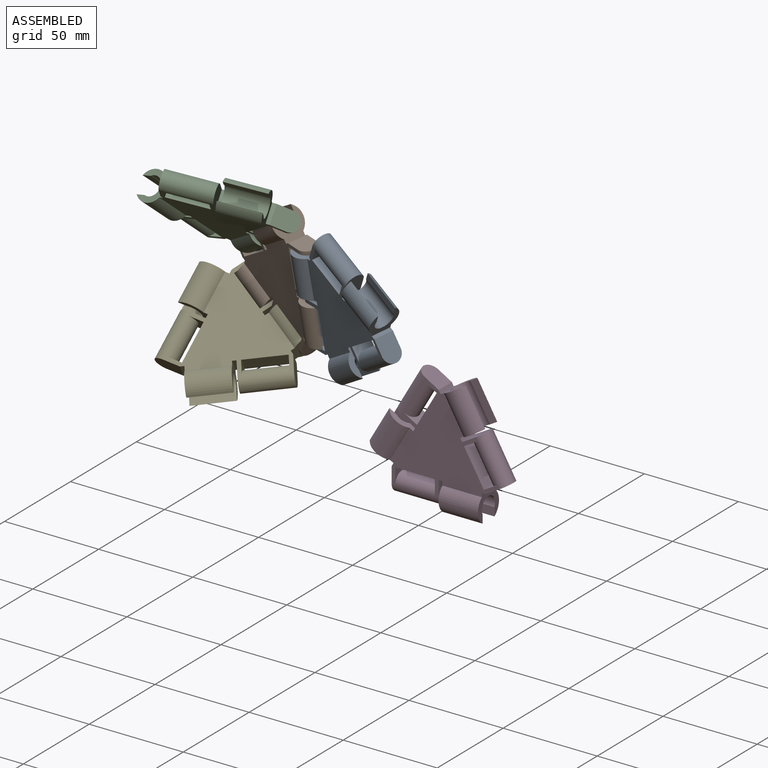
[diagram: assembled view]
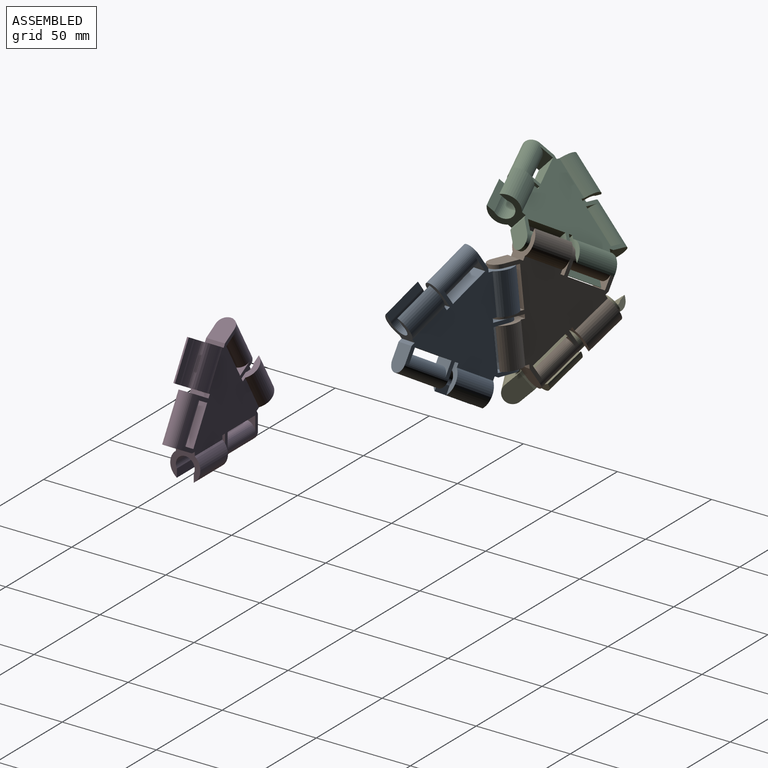
[diagram: assembled view, second angle]
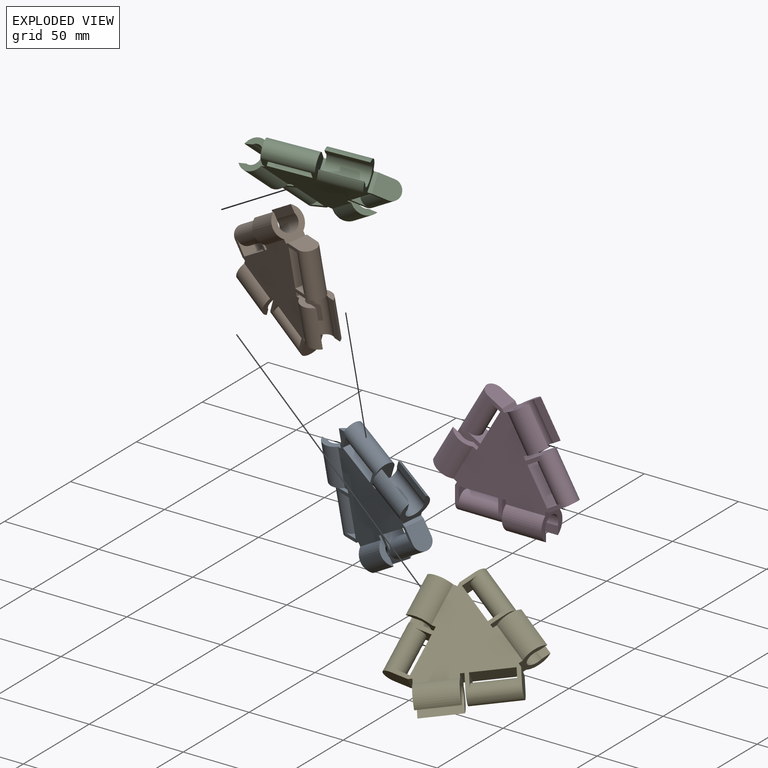
[diagram: exploded view]
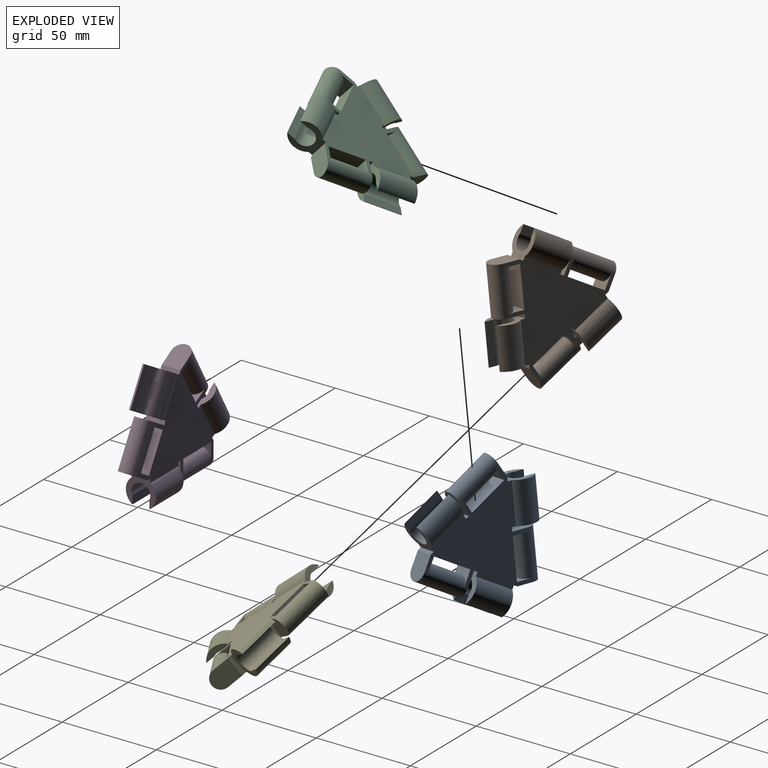
[diagram: exploded view, second angle]
ASSEMBLY  parts=5 mates=3
PART A: 47 faces, bbox 73.5x16x64.9 mm
  f0: cylinder r=8mm len=21mm, axis (-1,0,0), area 314mm2, adj f1,f5,f6,f7
  f1: plane 21x4.44mm, normal (0,1,0), area 93.1mm2, adj f0,f2,f5,f6
  f2: cylinder r=5mm len=21mm, axis (-1,0,0), area 424.6mm2, adj f1,f3,f5,f6
  f3: plane 21x4.44mm, normal (0,-1,0), area 93.1mm2, adj f2,f4,f5,f6
  f4: cylinder r=8mm len=21mm, axis (-1,0,0), area 314mm2, adj f3,f5,f6,f10
  f5: plane 16x14.95mm, normal (-1,0,0), area 101.2mm2, adj f0,f1,f2,f3,f4,f7,f10,f29
  f6: plane 16x14.95mm, normal (1,0,0), area 101.2mm2, adj f0,f1,f2,f3,f4,f7,f10,f28
  f7: plane 58.03x55.8mm, normal (0,-1,0), area 1314.1mm2, adj f0,f5,f6,f8,f9,f11,f12,f13
  f8: plane 11.55x10mm, normal (-0.5,0,0.87), area 122.6mm2, adj f7,f10,f11,f12
  f9: plane 10x7.22mm, normal (0.5,0,-0.87), area 44.1mm2, adj f7,f10,f12,f30
  f10: plane 58.03x55.8mm, normal (0,1,0), area 1314.1mm2, adj f4,f5,f6,f8,f9,f11,f12,f17
  f11: plane 10x1.73mm, normal (0.87,0,0.5), area 20mm2, adj f7,f8,f10,f18
  f12: cylinder r=5mm len=26.65mm, axis (0.5,0,-0.87), area 722.6mm2, adj f7,f8,f9,f10,f40,f41
  f13: cylinder r=8mm len=24.62mm, axis (0.5,0,-0.87), area 314mm2, adj f7,f14,f18,f19
  f14: plane 20.4x14.34mm, normal (0,1,0), area 93.1mm2, adj f13,f15,f18,f19
  f15: cylinder r=5mm len=21.78mm, axis (0.5,0,-0.87), area 424.6mm2, adj f14,f16,f18,f19
  f16: plane 20.4x14.34mm, normal (0,-1,0), area 93.1mm2, adj f15,f17,f18,f19
  f17: cylinder r=8mm len=24.62mm, axis (0.5,0,-0.87), area 314mm2, adj f10,f16,f18,f19
  f18: plane 16x12.95mm, normal (0.5,0,-0.87), area 101.2mm2, adj f7,f10,f11,f13,f14,f15,f16,f17
  f19: plane 16x12.95mm, normal (-0.5,0,0.87), area 101.2mm2, adj f7,f10,f13,f14,f15,f16,f17,f25
  f20: plane 10x8.33mm, normal (1,0,0), area 44.1mm2, adj f7,f10,f22,f23
  f21: plane 13.33x10mm, normal (-1,0,0), area 122.6mm2, adj f7,f10,f23,f27
  f22: plane 21x10mm, normal (0,0,-1), area 210mm2, adj f7,f10,f20,f32
  f23: cylinder r=5mm len=25mm, axis (-1,0,0), area 722.6mm2, adj f7,f10,f20,f21,f24,f32
  f24: plane 13.33x10mm, normal (1,0,0), area 122.6mm2, adj f7,f10,f23,f29
  f25: plane 10x1.73mm, normal (0.87,0,0.5), area 20mm2, adj f7,f10,f19,f46
  f26: plane 18.19x10.5mm, normal (-0.87,0,0.5), area 210mm2, adj f7,f10,f43,f45
  f27: plane 10x1.73mm, normal (-0.87,0,0.5), area 20mm2, adj f7,f10,f21,f33
  f28: plane 10x2mm, normal (0,0,-1), area 20mm2, adj f6,f7,f10,f40
  f29: plane 10x2mm, normal (0,0,-1), area 20mm2, adj f5,f7,f10,f24
  f30: plane 18.19x10.5mm, normal (0.87,0,0.5), area 210mm2, adj f7,f9,f10,f41
  f31: plane 10x1.73mm, normal (-0.87,0,0.5), area 20mm2, adj f7,f10,f34,f42
  f32: plane 10x8.33mm, normal (-1,0,0), area 44.1mm2, adj f7,f10,f22,f23
  f33: plane 16x12.95mm, normal (-0.5,0,-0.87), area 101.2mm2, adj f7,f10,f27,f35,f36,f37,f38,f39
  f34: plane 16x12.95mm, normal (0.5,0,0.87), area 101.2mm2, adj f7,f10,f31,f35,f36,f37,f38,f39
  f35: cylinder r=8mm len=24.62mm, axis (0.5,0,0.87), area 314mm2, adj f10,f33,f34,f38
  f36: plane 20.4x14.34mm, normal (0,1,0), area 93.1mm2, adj f33,f34,f37,f39
  f37: cylinder r=5mm len=21.78mm, axis (0.5,0,0.87), area 424.6mm2, adj f33,f34,f36,f38
  f38: plane 20.4x14.34mm, normal (0,-1,0), area 93.1mm2, adj f33,f34,f35,f37
  f39: cylinder r=8mm len=24.62mm, axis (0.5,0,0.87), area 314mm2, adj f7,f33,f34,f36
  f40: plane 11.55x10mm, normal (0.5,0,-0.87), area 122.6mm2, adj f7,f10,f12,f28
  f41: plane 10x7.22mm, normal (-0.5,0,0.87), area 44.1mm2, adj f7,f10,f12,f30
  f42: plane 11.55x10mm, normal (-0.5,0,-0.87), area 122.6mm2, adj f7,f10,f31,f44
  f43: plane 10x7.22mm, normal (0.5,0,0.87), area 44.1mm2, adj f7,f10,f26,f44
  f44: cylinder r=5mm len=26.65mm, axis (0.5,0,0.87), area 722.6mm2, adj f7,f10,f42,f43,f45,f46
  f45: plane 10x7.22mm, normal (-0.5,0,-0.87), area 44.1mm2, adj f7,f10,f26,f44
  f46: plane 11.55x10mm, normal (0.5,0,0.87), area 122.6mm2, adj f7,f10,f25,f44
PART B: same geometry as A
PART C: same geometry as A
PART D: same geometry as A
PART E: same geometry as A
PLACE A rot(axis=(-0.28,-0.03,0.96),158.2deg) t=(-15.41,95.36,14.59)mm
PLACE B rot(axis=(0.24,-0.13,0.96),160.8deg) t=(-57.83,111.89,14.33)mm
PLACE C rot(axis=(-0.6,0.29,-0.75),144.9deg) t=(-83.98,99.11,44.37)mm
PLACE D t=(81,33.2,0)mm
PLACE E rot(axis=(0.18,-0.39,-0.9),155.2deg) t=(-78.33,102.41,-15.52)mm
MATE revolute A.f12 <-> B.f35  axis (0.07,0.15,-0.99) through (-35.97,105.1,2.06)mm
MATE revolute C.f35 <-> B.f12  axis (0.77,-0.41,0.5) through (-60.04,108.15,39.94)mm
MATE revolute E.f35 <-> B.f23  axis (-0.83,0.25,0.49) through (-77.47,122.43,1)mm
